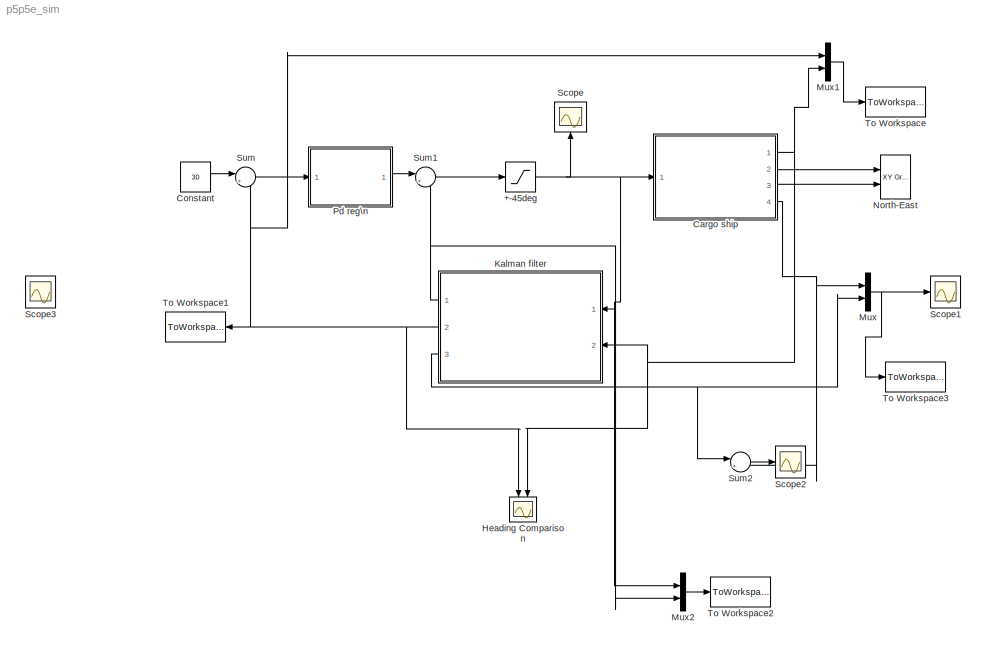
MODEL p5p5e_sim
KIND model
BLOCK [Saturate] +-45deg
  InputPortMap = u0
  LowerLimit = -45
  Ports = [1, 1]
  SID = 76
  UpperLimit = 45
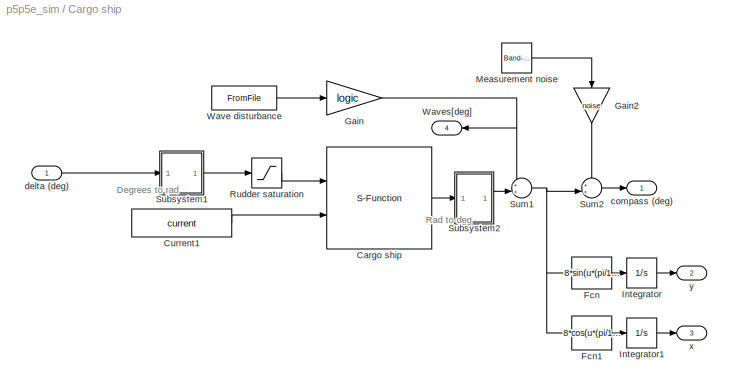
BLOCK [SubSystem] Cargo ship
  Ports = [1, 4]
  RequestExecContextInheritance = off
  SID = 1
  Variant = off
BLOCK [S-Function] Cargo ship/Cargo ship
  EnableBusSupport = off
  FunctionName = Cargoship
  Ports = [2, 1]
  SFcnIsStateOwnerBlock = off
  SFunctionDeploymentMode = off
  SID = 3
BLOCK [Constant] Cargo ship/Current1
  SID = 4
  Value = current
BLOCK [Fcn] Cargo ship/Fcn
  Expr = 8*sin(u*(pi/180))
  SID = 5
BLOCK [Fcn] Cargo ship/Fcn1
  Expr = 8*cos(u*(pi/180))
  SID = 6
BLOCK [Gain] Cargo ship/Gain
  Gain = logic
  SID = 7
BLOCK [Gain] Cargo ship/Gain2
  Gain = noise
  SID = 8
BLOCK [Integrator] Cargo ship/Integrator
  Ports = [1, 1]
  SID = 9
BLOCK [Integrator] Cargo ship/Integrator1
  Ports = [1, 1]
  SID = 10
BLOCK [Reference] Cargo ship/Measurement noise  REF=simulink/Sources/Band-Limited\nWhite Noise
  Cov = [0.001]
  Ports = [0, 1]
  SID = 11
  SourceBlock = simulink/Sources/Band-Limited\nWhite Noise
  SourceProductBaseCode = SL
  SourceProductName = Simulink
  SourceType = Band-Limited White Noise.
  Ts = .5
  VectorParams1D = on
  seed = [23341]
BLOCK [Saturate] Cargo ship/Rudder saturation
  InputPortMap = u0
  LowerLimit = -45*(pi/180)
  Ports = [1, 1]
  SID = 12
  UpperLimit = 45*(pi/180)
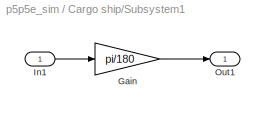
BLOCK [SubSystem] Cargo ship/Subsystem1
  Ports = [1, 1]
  RequestExecContextInheritance = off
  SID = 13
  Variant = off
BLOCK [Gain] Cargo ship/Subsystem1/Gain
  Gain = pi/180
  SID = 15
BLOCK [Inport] Cargo ship/Subsystem1/In1
  IconDisplay = Port number
  SID = 14
BLOCK [Outport] Cargo ship/Subsystem1/Out1
  IconDisplay = Port number
  SID = 16
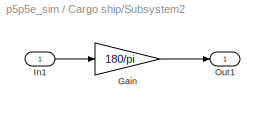
BLOCK [SubSystem] Cargo ship/Subsystem2
  Ports = [1, 1]
  RequestExecContextInheritance = off
  SID = 17
  Variant = off
BLOCK [Gain] Cargo ship/Subsystem2/Gain
  Gain = 180/pi
  SID = 19
BLOCK [Inport] Cargo ship/Subsystem2/In1
  IconDisplay = Port number
  SID = 18
BLOCK [Outport] Cargo ship/Subsystem2/Out1
  IconDisplay = Port number
  SID = 20
BLOCK [Sum] Cargo ship/Sum1
  IconShape = round
  InputSameDT = off
  Inputs = ++|
  OutDataTypeStr = Inherit: Inherit via internal rule
  Ports = [2, 1]
  SID = 21
BLOCK [Sum] Cargo ship/Sum2
  IconShape = round
  InputSameDT = off
  Inputs = ++|
  OutDataTypeStr = Inherit: Inherit via internal rule
  Ports = [2, 1]
  SID = 22
BLOCK [FromFile] Cargo ship/Wave disturbance
  FileName = wave.mat
  SID = 23
  SampleTime = 0
BLOCK [Outport] Cargo ship/Waves[deg]
  IconDisplay = Port number
  Port = 4
  SID = 80
BLOCK [Outport] Cargo ship/compass (deg)
  IconDisplay = Port number
  SID = 24
BLOCK [Inport] Cargo ship/delta (deg)
  IconDisplay = Port number
  SID = 2
BLOCK [Outport] Cargo ship/x
  IconDisplay = Port number
  Port = 3
  SID = 26
BLOCK [Outport] Cargo ship/y
  IconDisplay = Port number
  Port = 2
  SID = 25
BLOCK [Constant] Constant
  SID = 49
  Value = 30
BLOCK [Scope] Heading Comparison
  NumInputPorts = 2
  Ports = [2]
  SID = 56
  ScopeSpecificationString = Simulink.scopes.TimeScopeBlockCfg('CurrentConfiguration', extmgr.ConfigurationSet(extmgr.Configuration('Core','General UI',true),extmgr.Configuration('Core','Source UI',true),extmgr.Configuration('Sources','WiredSimulink',true,'DataLoggingVariableName','ScopeData4'),extmgr.Configuration('Visuals','Time Domain',true,'SerializedDisplays',{struct('MinYLimReal','-6.0323','MaxYLimReal','36.10672','YLab...<+1462ch>
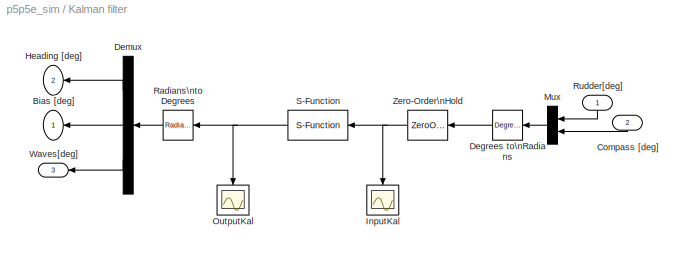
BLOCK [SubSystem] Kalman filter
  Ports = [2, 3]
  RequestExecContextInheritance = off
  SID = 69
  Variant = off
BLOCK [Outport] Kalman filter/Bias [deg]
  IconDisplay = Port number
  SID = 72
BLOCK [Inport] Kalman filter/Compass [deg]
  IconDisplay = Port number
  Port = 2
  SID = 70
BLOCK [Reference] Kalman filter/Degrees to\nRadians  REF=simulink_extras/Transformations/Degrees to\nRadians
  Ports = [1, 1]
  SID = 83
  SourceBlock = simulink_extras/Transformations/Degrees to\nRadians
  SourceProductBaseCode = SL
  SourceProductName = Simulink
  SourceType = DegreesToRadians
BLOCK [Demux] Kalman filter/Demux
  DisplayOption = bar
  Outputs = 3
  Ports = [1, 3]
  SID = 38
BLOCK [Outport] Kalman filter/Heading [deg]
  IconDisplay = Port number
  Port = 2
  SID = 73
BLOCK [Scope] Kalman filter/InputKal
  NumInputPorts = 1
  Ports = [1]
  SID = 55
  ScopeSpecificationString = Simulink.scopes.TimeScopeBlockCfg('CurrentConfiguration', extmgr.ConfigurationSet(extmgr.Configuration('Core','General UI',true),extmgr.Configuration('Core','Source UI',true),extmgr.Configuration('Sources','WiredSimulink',true,'DataLoggingVariableName','ScopeData3'),extmgr.Configuration('Visuals','Time Domain',true,'SerializedDisplays',{struct('MinYLimReal','-35.27733','MaxYLimReal','59.47526','YL...<+1448ch>
BLOCK [Mux] Kalman filter/Mux
  DisplayOption = bar
  Inputs = 2
  Ports = [2, 1]
  SID = 36
BLOCK [Scope] Kalman filter/OutputKal
  NumInputPorts = 1
  Ports = [1]
  SID = 54
  ScopeSpecificationString = Simulink.scopes.TimeScopeBlockCfg('CurrentConfiguration', extmgr.ConfigurationSet(extmgr.Configuration('Core','General UI',true),extmgr.Configuration('Core','Source UI',true),extmgr.Configuration('Sources','WiredSimulink',true,'DataLoggingVariableName','ScopeData2'),extmgr.Configuration('Visuals','Time Domain',true,'SerializedDisplays',{struct('MinYLimReal','-0.00835','MaxYLimReal','0.01224','YLab...<+1431ch>
BLOCK [Reference] Kalman filter/Radians\nto Degrees  REF=simulink_extras/Transformations/Radians\nto Degrees
  Ports = [1, 1]
  SID = 82
  SourceBlock = simulink_extras/Transformations/Radians\nto Degrees
  SourceProductBaseCode = SL
  SourceProductName = Simulink
  SourceType = RadiansToDegrees
BLOCK [Inport] Kalman filter/Rudder[deg]
  IconDisplay = Port number
  SID = 71
BLOCK [S-Function] Kalman filter/S-Function
  EnableBusSupport = off
  FunctionName = DiscKal
  Parameters = data
  Ports = [1, 1]
  SFcnIsStateOwnerBlock = off
  SFunctionDeploymentMode = off
  SID = 33
BLOCK [Outport] Kalman filter/Waves[deg]
  IconDisplay = Port number
  Port = 3
  SID = 81
BLOCK [ZeroOrderHold] Kalman filter/Zero-Order\nHold
  SID = 37
  SampleTime = T_s
BLOCK [Mux] Mux
  DisplayOption = bar
  Inputs = 2
  Ports = [2, 1]
  SID = 85
BLOCK [Mux] Mux1
  DisplayOption = bar
  Inputs = 2
  Ports = [2, 1]
  SID = 92
BLOCK [Mux] Mux2
  DisplayOption = bar
  Inputs = 2
  Ports = [2, 1]
  SID = 93
BLOCK [Reference] North-East  REF=simulink/Sinks/XY Graph
  Ports = [2]
  SID = 29
  SourceBlock = simulink/Sinks/XY Graph
  SourceProductBaseCode = SL
  SourceProductName = Simulink
  SourceType = XY scope.
  st = -1
  xmax = 5000
  xmin = -5000
  ymax = 5000
  ymin = -5000
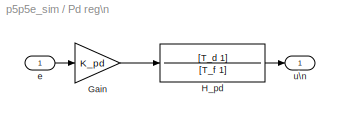
BLOCK [SubSystem] Pd reg\n
  Ports = [1, 1]
  RequestExecContextInheritance = off
  SID = 44
  Variant = off
BLOCK [Gain] Pd reg\n/Gain
  Gain = K_pd
  OutDataTypeStr = Inherit: Inherit via internal rule
  ParamDataTypeStr = Inherit: Inherit via internal rule
  SID = 42
  SaturateOnIntegerOverflow = off
BLOCK [TransferFcn] Pd reg\n/H_pd
  Denominator = [T_f 1]
  Numerator = [T_d 1]
  SID = 43
BLOCK [Inport] Pd reg\n/e
  IconDisplay = Port number
  SID = 45
BLOCK [Outport] Pd reg\n/u\n
  IconDisplay = Port number
  SID = 46
BLOCK [Scope] Scope
  NumInputPorts = 1
  Ports = [1]
  SID = 77
  ScopeSpecificationString = Simulink.scopes.TimeScopeBlockCfg('CurrentConfiguration', extmgr.ConfigurationSet(extmgr.Configuration('Core','General UI',true),extmgr.Configuration('Core','Source UI',true),extmgr.Configuration('Sources','WiredSimulink',true,'DataLoggingVariableName','ScopeData1'),extmgr.Configuration('Visuals','Time Domain',true,'SerializedDisplays',{struct('MinYLimReal','-30.21791','MaxYLimReal','53.35755','YL...<+1428ch>
BLOCK [Scope] Scope1
  NumInputPorts = 1
  Ports = [1]
  SID = 86
  ScopeSpecificationString = Simulink.scopes.TimeScopeBlockCfg('CurrentConfiguration', extmgr.ConfigurationSet(extmgr.Configuration('Core','General UI',true),extmgr.Configuration('Core','Source UI',true),extmgr.Configuration('Sources','WiredSimulink',true,'DataLoggingVariableName','ScopeData1'),extmgr.Configuration('Visuals','Time Domain',true,'SerializedDisplays',{struct('MinYLimReal','-3.102','MaxYLimReal','2.81867','YLabel...<+1424ch>
BLOCK [Scope] Scope2
  NumInputPorts = 1
  Ports = [1]
  SID = 88
  ScopeSpecificationString = Simulink.scopes.TimeScopeBlockCfg('CurrentConfiguration', extmgr.ConfigurationSet(extmgr.Configuration('Core','General UI',true),extmgr.Configuration('Core','Source UI',true),extmgr.Configuration('Sources','WiredSimulink',true,'DataLoggingVariableName','ScopeData2'),extmgr.Configuration('Visuals','Time Domain',true,'SerializedDisplays',{struct('MinYLimReal','-0.84964','MaxYLimReal','0.63211','YLab...<+1382ch>
BLOCK [Scope] Scope3
  NumInputPorts = 1
  Ports = [1]
  SID = 100
  ScopeSpecificationString = Simulink.scopes.TimeScopeBlockCfg('CurrentConfiguration', extmgr.ConfigurationSet(extmgr.Configuration('Core','General UI',true),extmgr.Configuration('Core','Source UI',true),extmgr.Configuration('Sources','WiredSimulink',true,'DataLoggingVariableName','ScopeData3'),extmgr.Configuration('Visuals','Time Domain',true,'SerializedDisplays',{struct('MinYLimReal','-1.00000','MaxYLimReal','1.00000','YLab...<+1368ch>
BLOCK [Sum] Sum
  IconShape = round
  InputSameDT = off
  Inputs = |+-
  OutDataTypeStr = Inherit: Inherit via internal rule
  Ports = [2, 1]
  SID = 39
  SaturateOnIntegerOverflow = off
BLOCK [Sum] Sum1
  IconShape = round
  InputSameDT = off
  Inputs = |++
  OutDataTypeStr = Inherit: Inherit via internal rule
  Ports = [2, 1]
  SID = 41
  SaturateOnIntegerOverflow = off
BLOCK [Sum] Sum2
  IconShape = round
  InputSameDT = off
  Inputs = |+-
  OutDataTypeStr = Inherit: Inherit via internal rule
  Ports = [2, 1]
  SID = 87
  SaturateOnIntegerOverflow = off
BLOCK [ToWorkspace] To Workspace
  FixptAsFi = on
  MaxDataPoints = inf
  Ports = [1]
  SID = 61
  SampleTime = -1
  Save2DSignal = 3-D array (concatenate along third dimension)
  SaveFormat = Timeseries
  VariableName = heading
BLOCK [ToWorkspace] To Workspace1
  FixptAsFi = on
  MaxDataPoints = inf
  Ports = [1]
  SID = 62
  SampleTime = -1
  Save2DSignal = 3-D array (concatenate along third dimension)
  SaveFormat = Timeseries
  VariableName = filterheading
BLOCK [ToWorkspace] To Workspace2
  FixptAsFi = on
  MaxDataPoints = inf
  Ports = [1]
  SID = 94
  SampleTime = -1
  Save2DSignal = 3-D array (concatenate along third dimension)
  SaveFormat = Timeseries
  VariableName = rudder
BLOCK [ToWorkspace] To Workspace3
  FixptAsFi = on
  MaxDataPoints = inf
  Ports = [1]
  SID = 101
  SampleTime = -1
  Save2DSignal = 3-D array (concatenate along third dimension)
  SaveFormat = Timeseries
  VariableName = waves
ANNOTATION Cargo ship: Degrees to rad
ANNOTATION Cargo ship: Rad to deg
NET +-45deg:1 -> Cargo ship:1, Kalman filter:1, Mux2:1, Scope:1
LINE Cargo ship/Cargo ship:1 -> Cargo ship/Subsystem2:1
LINE Cargo ship/Current1:1 -> Cargo ship/Cargo ship:2
LINE Cargo ship/Fcn1:1 -> Cargo ship/Integrator1:1
LINE Cargo ship/Fcn:1 -> Cargo ship/Integrator:1
LINE Cargo ship/Gain2:1 -> Cargo ship/Sum2:1
NET Cargo ship/Gain:1 -> Cargo ship/Sum1:1, Cargo ship/Waves[deg]:1
LINE Cargo ship/Integrator1:1 -> Cargo ship/x:1
LINE Cargo ship/Integrator:1 -> Cargo ship/y:1
LINE Cargo ship/Measurement noise:1 -> Cargo ship/Gain2:1
LINE Cargo ship/Rudder saturation:1 -> Cargo ship/Cargo ship:1
LINE Cargo ship/Subsystem1/Gain:1 -> Cargo ship/Subsystem1/Out1:1
LINE Cargo ship/Subsystem1/In1:1 -> Cargo ship/Subsystem1/Gain:1
LINE Cargo ship/Subsystem1:1 -> Cargo ship/Rudder saturation:1
LINE Cargo ship/Subsystem2/Gain:1 -> Cargo ship/Subsystem2/Out1:1
LINE Cargo ship/Subsystem2/In1:1 -> Cargo ship/Subsystem2/Gain:1
LINE Cargo ship/Subsystem2:1 -> Cargo ship/Sum1:2
NET Cargo ship/Sum1:1 -> Cargo ship/Fcn1:1, Cargo ship/Fcn:1, Cargo ship/Sum2:2
LINE Cargo ship/Sum2:1 -> Cargo ship/compass (deg):1
LINE Cargo ship/Wave disturbance:1 -> Cargo ship/Gain:1
LINE Cargo ship/delta (deg):1 -> Cargo ship/Subsystem1:1
NET Cargo ship:1 -> Heading Comparison:2, Kalman filter:2, Mux1:2
LINE Cargo ship:2 -> North-East:1
LINE Cargo ship:3 -> North-East:2
NET Cargo ship:4 -> Mux:1, Sum2:2
LINE Constant:1 -> Sum:1
LINE Kalman filter/Compass [deg]:1 -> Kalman filter/Mux:2
LINE Kalman filter/Degrees to\nRadians:1 -> Kalman filter/Zero-Order\nHold:1
LINE Kalman filter/Demux:1 -> Kalman filter/Heading [deg]:1
LINE Kalman filter/Demux:2 -> Kalman filter/Bias [deg]:1
LINE Kalman filter/Demux:3 -> Kalman filter/Waves[deg]:1
LINE Kalman filter/Mux:1 -> Kalman filter/Degrees to\nRadians:1
LINE Kalman filter/Radians\nto Degrees:1 -> Kalman filter/Demux:1
LINE Kalman filter/Rudder[deg]:1 -> Kalman filter/Mux:1
NET Kalman filter/S-Function:1 -> Kalman filter/OutputKal:1, Kalman filter/Radians\nto Degrees:1
NET Kalman filter/Zero-Order\nHold:1 -> Kalman filter/InputKal:1, Kalman filter/S-Function:1
NET Kalman filter:1 -> Mux2:2, Sum1:2
NET Kalman filter:2 -> Heading Comparison:1, Mux1:1, Sum:2, To Workspace1:1
NET Kalman filter:3 -> Mux:2, Sum2:1
LINE Mux1:1 -> To Workspace:1
LINE Mux2:1 -> To Workspace2:1
NET Mux:1 -> Scope1:1, To Workspace3:1
LINE Pd reg\n/Gain:1 -> Pd reg\n/H_pd:1
LINE Pd reg\n/H_pd:1 -> Pd reg\n/u\n:1
LINE Pd reg\n/e:1 -> Pd reg\n/Gain:1
LINE Pd reg\n:1 -> Sum1:1
LINE Sum1:1 -> +-45deg:1
LINE Sum2:1 -> Scope2:1
LINE Sum:1 -> Pd reg\n:1
note: NET lines group one-source signal fan-out (src -> all destinations, sorted); 1:1 wires keep LINE
